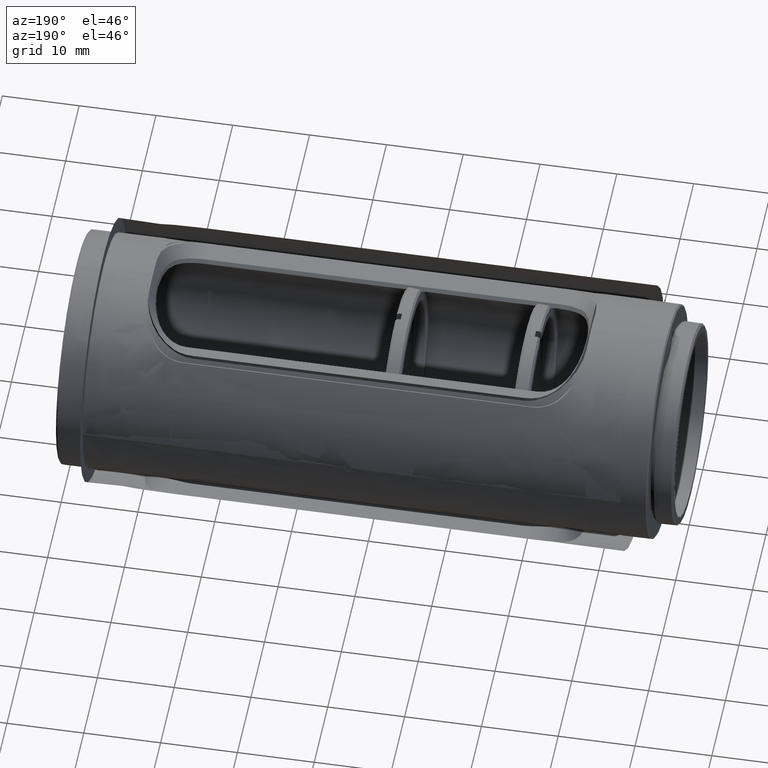
[diagram: clean part render]
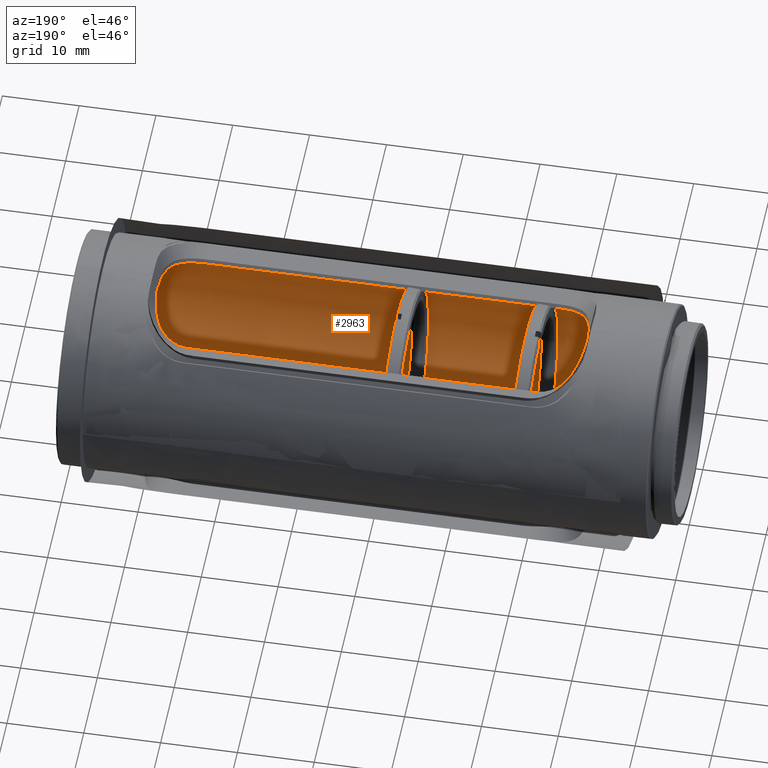
[diagram: same view with one face highlighted and labeled with its STEP entity id]
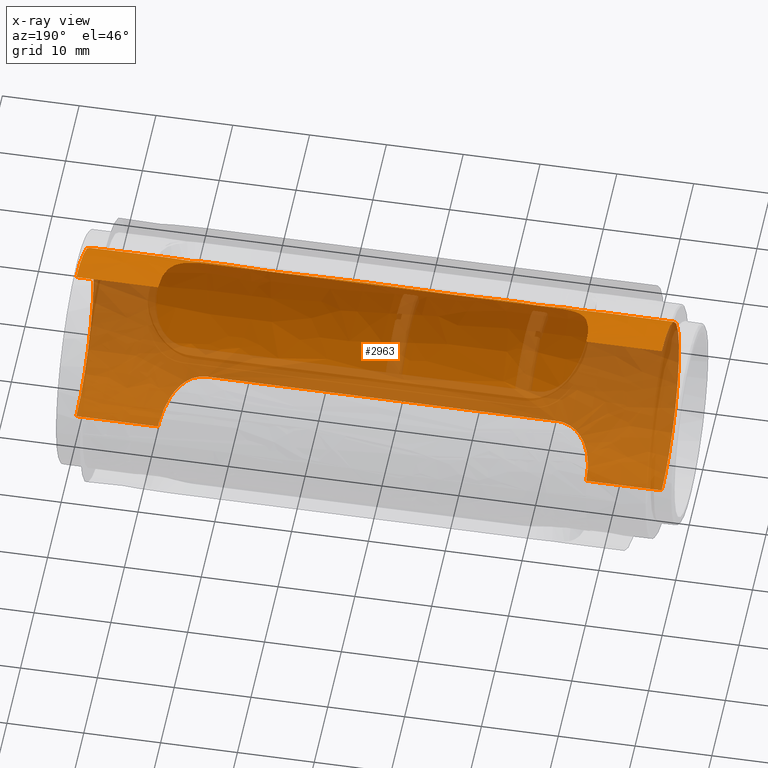
[diagram: x-ray of the same camera — body ghosted, the highlighted face saturated]
A machine part, auxiliary view. The second image highlights one B-rep face of the part: STEP entity #2963.
The next image is the same camera in x-ray: the body ghosted, the highlighted face saturated — about 50% of this face is hidden behind the body in this view.
In plain terms, the highlighted face is a freeform B-spline surface patch.
Its self-contained STEP definition (entity closure, byte-faithful):
#85 = CARTESIAN_POINT ( 'NONE',  ( -31.83391507261635311, -5.021551688762062149, -11.80313636215862161 ) ) ;
#150 = CARTESIAN_POINT ( 'NONE',  ( -31.02463960500773155, -2.430086151110083303, -12.59211128316691308 ) ) ;
#165 = CARTESIAN_POINT ( 'NONE',  ( -31.13609289038759442, -3.012851743446376851, 12.46424084413393985 ) ) ;
#184 = B_SPLINE_CURVE_WITH_KNOTS ( 'NONE', 1,
 ( #3322, #10538 ),
 .UNSPECIFIED., .F., .F.,
 ( 2, 2 ),
 ( 0.000000000000000000, 1.000000000000000000 ),
 .UNSPECIFIED. ) ;
#230 = CARTESIAN_POINT ( 'NONE',  ( -33.67509046073442391, -6.964707715348830597, 10.77163029358229451 ) ) ;
#278 = CARTESIAN_POINT ( 'NONE',  ( -31.35215171697834791, -3.839724992987747054, -12.23662784658705149 ) ) ;
#294 = CARTESIAN_POINT ( 'NONE',  ( -30.85868296422884782, -0.8824534959709755544, 12.79941383864430371 ) ) ;
#318 = CARTESIAN_POINT ( 'NONE',  ( -96.41715672482450827, 8.662958387056229999E-15, -12.82699999999999996 ) ) ;
#354 = CARTESIAN_POINT ( 'NONE',  ( -31.12932501518754691, -2.981154856613172921, 12.47179160694212641 ) ) ;
#355 = B_SPLINE_CURVE_WITH_KNOTS ( 'NONE', 3,
 ( #10045, #4017, #12104, #6097, #8031, #1832, #12041, #9235, #2956, #10177, #5087, #1089, #6894, #1901, #5972, #902, #7021, #9109, #7152, #8980, #4080, #6157, #6959, #13114, #8159, #10981, #4892, #5158, #7087, #7971, #1965, #966, #10240, #5026, #13045, #3891, #13174, #3021, #5899, #2897, #85, #4960, #11176, #12236, #4150, #8224, #6036, #9981, #833, #9045, #3085, #12305, #6221, #11558, #2283, #12372, #9426, #2410, #278, #2155, #11371, #150, #4276, #1404, #407, #7347, #10306, #5414, #1151, #3150, #11431, #6286, #12435, #6347, #7220, #1344, #10434 ),
 .UNSPECIFIED., .F., .F.,
 ( 4, 2, 2, 2, 2, 2, 2, 1, 1, 1, 2, 2, 2, 2, 2, 1, 1, 1, 2, 2, 2, 1, 1, 2, 1, 1, 1, 2, 2, 2, 2, 2, 1, 1, 1, 2, 2, 2, 2, 2, 1, 1, 1, 2, 2, 2, 4 ),
 ( 0.000000000000000000, 0.06250000000004780898, 0.09375000000007269185, 0.1250000000000975608, 0.1875000000001454392, 0.2187500000001692813, 0.2343750000001811884, 0.2421875000001871003, 0.2460937500001892930, 0.2480468750001895983, 0.2490234375001906253, 0.2500000000001916800, 0.3125000000002033373, 0.3437500000002092215, 0.3593750000002125522, 0.3671875000002136624, 0.3710937500002141620, 0.3730468750002144951, 0.3740234375002145506, 0.3750000000002146061, 0.4375000000002671752, 0.4687500000002928213, 0.4843750000003052558, 0.4921875000003120282, 0.4960937500003156919, 0.4980468750003178569, 0.4990234375003189671, 0.4995117187503194667, 0.5000000000003199663, 0.5625000000002590150, 0.5937500000002280398, 0.6093750000002126077, 0.6171875000002048361, 0.6210937500002011724, 0.6230468750001995071, 0.6240234375001986189, 0.6250000000001976197, 0.7500000000001326717, 0.8125000000001002531, 0.8437500000000840439, 0.8593750000000759393, 0.8671875000000718314, 0.8710937500000698330, 0.8730468750000687228, 0.8750000000000677236, 0.9375000000000338618, 1.000000000000000000 ),
 .UNSPECIFIED. ) ;
#385 = CARTESIAN_POINT ( 'NONE',  ( -96.41715672482449406, -12.74484754683963139, 1.676340673998597985 ) ) ;
#407 = CARTESIAN_POINT ( 'NONE',  ( -30.93830594265517320, -1.800717057692649670, -12.69742948957907025 ) ) ;
#421 = CARTESIAN_POINT ( 'NONE',  ( -31.11969227111644543, -2.935466598765251955, 12.48258095602603035 ) ) ;
#454 = ORIENTED_EDGE ( 'NONE', *, *, #12346, .F. ) ;
#505 = CARTESIAN_POINT ( 'NONE',  ( -20.21715672482449477, -9.665585972146873317, -8.474536035161049696 ) ) ;
#526 = CARTESIAN_POINT ( 'NONE',  ( -83.70651219680436839, -6.993315659455224598, -10.75312878497390479 ) ) ;
#563 = CARTESIAN_POINT ( 'NONE',  ( -34.15174608387732036, -7.196453982174339181, 10.61912465726988053 ) ) ;
#591 = CARTESIAN_POINT ( 'NONE',  ( -83.92702690498131801, -6.870814266003305804, -10.83203231801496713 ) ) ;
#633 = CARTESIAN_POINT ( 'NONE',  ( -82.45472443894882986, -7.434131612179786686, 10.45352664339045212 ) ) ;
#659 = CARTESIAN_POINT ( 'NONE',  ( -85.26812609151633637, -5.574434434775222158, -11.55152609702385824 ) ) ;
#666 = ORIENTED_EDGE ( 'NONE', *, *, #13020, .F. ) ;
#698 = CARTESIAN_POINT ( 'NONE',  ( -85.07775573143719328, -5.840774505187344978, 11.42011211690035388 ) ) ;
#725 = CARTESIAN_POINT ( 'NONE',  ( -82.02420487337901989, -7.515520375871570735, -10.39513148368356887 ) ) ;
#767 = CARTESIAN_POINT ( 'NONE',  ( -84.94208635901429716, -5.998408622664315182, 11.33677516938132079 ) ) ;
#795 = CARTESIAN_POINT ( 'NONE',  ( -85.25985264140983588, -5.586450359031572610, -11.54569876599899203 ) ) ;
#808 = B_SPLINE_CURVE_WITH_KNOTS ( 'NONE', 1,
 ( #9222, #11608 ),
 .UNSPECIFIED., .F., .F.,
 ( 2, 2 ),
 ( -1.000000000000000000, 0.000000000000000000 ),
 .UNSPECIFIED. ) ;
#833 = CARTESIAN_POINT ( 'NONE',  ( -31.60319027116440793, -4.533092100241322697, -11.99914989179185554 ) ) ;
#839 = CARTESIAN_POINT ( 'NONE',  ( -86.01721193399993126, -4.039729629602861749, 12.17262164106235645 ) ) ;
#902 = CARTESIAN_POINT ( 'NONE',  ( -33.44991981503902423, -6.831084636197667592, -10.85686771110610671 ) ) ;
#907 = CARTESIAN_POINT ( 'NONE',  ( -83.27841041003641465, -7.198872822648099579, 10.61845724748009445 ) ) ;
#961 = CARTESIAN_POINT ( 'NONE',  ( -35.85715672482449179, -7.515250814072949481, 10.39485133138400030 ) ) ;
#966 = CARTESIAN_POINT ( 'NONE',  ( -32.49605392723617570, -6.002844826583531912, -11.33442789125768968 ) ) ;
#970 = CARTESIAN_POINT ( 'NONE',  ( -86.40967383841837091, -2.430086185295253998, 12.59211127592869239 ) ) ;
#1034 = CARTESIAN_POINT ( 'NONE',  ( -86.51474660877944700, -1.624724645768457210, 12.72104662638383488 ) ) ;
#1089 = CARTESIAN_POINT ( 'NONE',  ( -33.63267649628827627, -6.941634379328908366, -10.78715305681645908 ) ) ;
#1108 = CARTESIAN_POINT ( 'NONE',  ( -20.21715672482449833, 8.776356490262909520E-15, 12.82699999999999996 ) ) ;
#1151 = CARTESIAN_POINT ( 'NONE',  ( -30.89595596015974621, -1.371737595200310134, -12.75119460701098006 ) ) ;
#1166 = CARTESIAN_POINT ( 'NONE',  ( -31.35833009339969379, -3.864221126349683733, 12.22988297531930613 ) ) ;
#1171 = FACE_OUTER_BOUND ( 'NONE', #5798, .T. ) ;
#1233 = CARTESIAN_POINT ( 'NONE',  ( -33.37198985241243321, -6.783229707606994729, 10.88697865707916002 ) ) ;
#1236 = CARTESIAN_POINT ( 'NONE',  ( -96.41715672482450827, -7.513882636747875488, 12.82700000000000884 ) ) ;
#1295 = CARTESIAN_POINT ( 'NONE',  ( -32.41483565753514284, -5.909507849572489313, 11.38425705102783780 ) ) ;
#1320 = CARTESIAN_POINT ( 'NONE',  ( -96.41715672482447985, -3.328489942270703938, -12.41622131955372765 ) ) ;
#1344 = CARTESIAN_POINT ( 'NONE',  ( -30.83846100374379517, -0.1125582409038061865, -12.82699999990119188 ) ) ;
#1359 = CARTESIAN_POINT ( 'NONE',  ( -33.72780125491342318, -6.993315660560331715, 10.75312878425553365 ) ) ;
#1383 = CARTESIAN_POINT ( 'NONE',  ( -96.41715672482447985, -12.82699671681121600, -0.8422661538812272752 ) ) ;
#1404 = CARTESIAN_POINT ( 'NONE',  ( -30.95171102775003291, -1.913013325707351164, -12.68073595888621696 ) ) ;
#1419 = CARTESIAN_POINT ( 'NONE',  ( -30.94843559756097662, -1.885940934376230560, 12.68461701379389517 ) ) ;
#1495 = CARTESIAN_POINT ( 'NONE',  ( -20.21715672482450188, -12.17290158708007830, -4.130590774566942791 ) ) ;
#1554 = CARTESIAN_POINT ( 'NONE',  ( -33.84304002427397506, -7.053305699895190628, 10.71405436139767531 ) ) ;
#1586 = CARTESIAN_POINT ( 'NONE',  ( -86.30813100353856271, -2.966329572046494167, -12.47530606156573185 ) ) ;
#1593 = B_SPLINE_CURVE_WITH_KNOTS ( 'NONE', 3,
 ( #5836, #3689, #6767, #7766, #633, #1630, #3895, #2902, #907, #1905, #1839, #11777, #5976, #3828, #4827, #10846, #10049, #8844, #7836, #12045, #5697, #6834, #11846, #9774, #4964, #11912, #4689, #8775, #1702, #9841, #13118, #5766, #767, #698, #2767, #12917, #8912, #9986, #3759, #6899, #10919, #1770, #9049, #9911, #7906, #11979, #7976, #6964, #2837, #7699, #2631, #10986, #839, #6699, #4897, #8985, #10775, #8035, #9113, #8100, #6040, #970, #11181, #9175, #2960, #1034, #4022, #5030, #7026, #7156, #13179, #12175, #11117, #4084, #12241, #2030, #8163 ),
 .UNSPECIFIED., .F., .F.,
 ( 4, 2, 2, 2, 2, 2, 2, 1, 1, 1, 2, 2, 2, 2, 2, 1, 1, 1, 2, 2, 2, 1, 1, 2, 1, 1, 1, 2, 2, 2, 2, 2, 1, 1, 1, 2, 2, 2, 2, 2, 1, 1, 1, 2, 2, 2, 4 ),
 ( 0.000000000000000000, 0.06250000000013110346, 0.09375000000019667601, 0.1250000000002622347, 0.1875000000003970990, 0.2187500000004627132, 0.2343750000004955480, 0.2421875000005120349, 0.2460937500005201950, 0.2480468750005241918, 0.2490234375005246081, 0.2500000000005250245, 0.3125000000006158962, 0.3437500000006614154, 0.3593750000006830092, 0.3671875000006928902, 0.3710937500006970535, 0.3730468750006992740, 0.3740234375007012169, 0.3750000000007031042, 0.4375000000007084888, 0.4687500000007103207, 0.4843750000007111534, 0.4921875000007116530, 0.4960937500007127077, 0.4980468750007124301, 0.4990234375007122636, 0.4995117187507122081, 0.5000000000007120970, 0.5625000000006394885, 0.5937500000006024070, 0.6093750000005839773, 0.6171875000005747625, 0.6210937500005700995, 0.6230468750005678791, 0.6240234375005663248, 0.6250000000005648815, 0.7500000000003754774, 0.8125000000002808864, 0.8437500000002335909, 0.8593750000002099432, 0.8671875000001979528, 0.8710937500001917355, 0.8730468750001887379, 0.8750000000001857403, 0.9375000000000929257, 1.000000000000000000 ),
 .UNSPECIFIED. ) ;
#1630 = CARTESIAN_POINT ( 'NONE',  ( -82.66517455332639486, -7.388961650875763176, 10.48577119867244534 ) ) ;
#1635 = B_SPLINE_CURVE_WITH_KNOTS ( 'NONE', 1,
 ( #4611, #5487 ),
 .UNSPECIFIED., .F., .F.,
 ( 2, 2 ),
 ( 0.000000000000000000, 1.000000000000000000 ),
 .UNSPECIFIED. ) ;
#1658 = CARTESIAN_POINT ( 'NONE',  ( -85.90658020884410462, -4.344188664279052148, -12.06796687150805347 ) ) ;
#1702 = CARTESIAN_POINT ( 'NONE',  ( -84.90284635322019824, -6.043437832866042747, 11.31286122422628893 ) ) ;
#1708 = CARTESIAN_POINT ( 'NONE',  ( -20.21715672482449833, -12.41623104242805198, 3.328441061161597769 ) ) ;
#1725 = CARTESIAN_POINT ( 'NONE',  ( -85.56200376852905265, -5.100514366666664579, -11.77069166247157384 ) ) ;
#1770 = CARTESIAN_POINT ( 'NONE',  ( -85.61077765736152401, -5.001684429324756209, 11.81160642608308464 ) ) ;
#1832 = CARTESIAN_POINT ( 'NONE',  ( -34.76913889742332486, -7.388961651135304898, -10.48577119848569517 ) ) ;
#1839 = CARTESIAN_POINT ( 'NONE',  ( -83.66421362677689899, -7.017569292274234094, 10.73836494621990845 ) ) ;
#1850 = CARTESIAN_POINT ( 'NONE',  ( -30.83846110759854753, -6.568785445841580477E-09, -12.82699999999999996 ) ) ;
#1901 = CARTESIAN_POINT ( 'NONE',  ( -33.52102191910861961, -6.875528559755485603, -10.82903820304060005 ) ) ;
#1905 = CARTESIAN_POINT ( 'NONE',  ( -83.56924489076642715, -7.065545366428583662, 10.70697644441383112 ) ) ;
#1965 = CARTESIAN_POINT ( 'NONE',  ( -32.50196373689838936, -6.009670876634127801, -11.33081131470324188 ) ) ;
#1979 = CARTESIAN_POINT ( 'NONE',  ( -30.83846110784554995, 6.015772086295059488E-15, 12.82699999999999996 ) ) ;
#2030 = CARTESIAN_POINT ( 'NONE',  ( -86.59585244598034137, -0.1125581923956438385, 12.82699999999999818 ) ) ;
#2086 = ORIENTED_EDGE ( 'NONE', *, *, #13086, .F. ) ;
#2155 = CARTESIAN_POINT ( 'NONE',  ( -31.20577067854328845, -3.368886921481897723, -12.38304803077492267 ) ) ;
#2236 = CARTESIAN_POINT ( 'NONE',  ( -32.52589739662347768, -6.044850197108199374, 11.31372672362538268 ) ) ;
#2261 = CARTESIAN_POINT ( 'NONE',  ( -96.41715672482449406, -3.328505165872246430, 12.41621159647482031 ) ) ;
#2264 = CARTESIAN_POINT ( 'NONE',  ( -86.50258074771684846, -1.743255349744063709, -12.70547646128644459 ) ) ;
#2283 = CARTESIAN_POINT ( 'NONE',  ( -31.37424925819053811, -3.909782407830088680, -12.21463102929337552 ) ) ;
#2299 = CARTESIAN_POINT ( 'NONE',  ( -32.17274291619665405, -5.583962691152641433, 11.54690664515132781 ) ) ;
#2327 = CARTESIAN_POINT ( 'NONE',  ( -86.44273333562959749, -2.219859376429525355, -12.63150831675781305 ) ) ;
#2344 = CARTESIAN_POINT ( 'NONE',  ( -30.83846110784554995, 6.015772086295059488E-15, 12.82699999999999996 ) ) ;
#2361 = CARTESIAN_POINT ( 'NONE',  ( -32.17250534193674127, -5.583615854177627291, 11.54707448340541021 ) ) ;
#2385 = CARTESIAN_POINT ( 'NONE',  ( -96.41715672482452248, -4.130529182909573827, 12.17292709950258356 ) ) ;
#2387 = VERTEX_POINT ( 'NONE', #5728 ) ;
#2388 = CARTESIAN_POINT ( 'NONE',  ( -86.59570092373380135, -0.2118370435849241395, -12.82666602185700278 ) ) ;
#2410 = CARTESIAN_POINT ( 'NONE',  ( -31.35433958467947235, -3.846743786648808783, -12.23444130611710357 ) ) ;
#2425 = CARTESIAN_POINT ( 'NONE',  ( -32.14661857068768569, -5.545876233850840720, 11.56534677659233523 ) ) ;
#2453 = CARTESIAN_POINT ( 'NONE',  ( -86.59585227362144622, -0.07418233162823399673, -12.82700000006515140 ) ) ;
#2485 = CARTESIAN_POINT ( 'NONE',  ( -30.91098185526987052, -1.536742771742126923, 12.73181581523007466 ) ) ;
#2509 = ORIENTED_EDGE ( 'NONE', *, *, #12519, .F. ) ;
#2550 = CARTESIAN_POINT ( 'NONE',  ( -86.59585234180329394, 7.120889955690749720E-16, 12.82699999999999996 ) ) ;
#2566 = CARTESIAN_POINT ( 'NONE',  ( -20.21715672482449477, -5.686769999200465442, 11.52830393999320080 ) ) ;
#2589 = CARTESIAN_POINT ( 'NONE',  ( -86.07598334035120047, -3.864221175934906771, -12.22988295958793969 ) ) ;
#2631 = CARTESIAN_POINT ( 'NONE',  ( -85.95251183981270060, -4.223471209009812988, 12.11067509230864658 ) ) ;
#2659 = CARTESIAN_POINT ( 'NONE',  ( -83.69505976787318957, -6.999416591143200250, -10.74917059022350863 ) ) ;
#2706 = CARTESIAN_POINT ( 'NONE',  ( -20.21715672482449477, -11.13316441209461871, -6.426037921608316772 ) ) ;
#2724 = CARTESIAN_POINT ( 'NONE',  ( -85.45399816333718945, -5.294154351309803275, -11.68519354172627267 ) ) ;
#2767 = CARTESIAN_POINT ( 'NONE',  ( -85.19981556038776205, -5.678293306814331309, 11.50204146135492600 ) ) ;
#2774 = CARTESIAN_POINT ( 'NONE',  ( -20.21715672482449122, -12.17289552104470118, 4.130588262024215140 ) ) ;
#2837 = CARTESIAN_POINT ( 'NONE',  ( -85.83112318265145291, -4.533092090366772631, 11.99914989553668754 ) ) ;
#2861 = CARTESIAN_POINT ( 'NONE',  ( -86.11618099821309613, -3.730735927604792224, -12.27061148359737786 ) ) ;
#2897 = CARTESIAN_POINT ( 'NONE',  ( -31.84288688233039011, -5.038524893442623664, -11.79585758674327600 ) ) ;
#2902 = CARTESIAN_POINT ( 'NONE',  ( -83.07792176340511503, -7.273273175597773310, 10.56725685294517803 ) ) ;
#2956 = CARTESIAN_POINT ( 'NONE',  ( -34.15590304129759147, -7.198872823303639201, -10.61845724702562954 ) ) ;
#2960 = CARTESIAN_POINT ( 'NONE',  ( -86.49600750134369775, -1.800717107810696715, 12.69742948253240300 ) ) ;
#2963 = ADVANCED_FACE ( 'NONE', ( #1171 ), #11280, .T. ) ;
#3021 = CARTESIAN_POINT ( 'NONE',  ( -31.89742716962008728, -5.139842820614079599, -11.75201399540797453 ) ) ;
#3042 = CARTESIAN_POINT ( 'NONE',  ( -96.41715672482450827, 5.630394138199489887E-09, -12.82699999999999996 ) ) ;
#3085 = CARTESIAN_POINT ( 'NONE',  ( -31.48180161311497116, -4.223471217912110554, -12.11067508919696856 ) ) ;
#3150 = CARTESIAN_POINT ( 'NONE',  ( -30.89396566790511756, -1.348021134404587151, -12.75375996367140452 ) ) ;
#3178 = CARTESIAN_POINT ( 'NONE',  ( -20.21715672482449833, 1.257130619265186031E-14, -12.82699999999999996 ) ) ;
#3231 = CARTESIAN_POINT ( 'NONE',  ( -31.51747541555520371, -4.317580024795148574, 12.07744843514927702 ) ) ;
#3254 = CARTESIAN_POINT ( 'NONE',  ( -96.41715672482450827, -1.676341955129499794, 12.74485398698966243 ) ) ;
#3293 = CARTESIAN_POINT ( 'NONE',  ( -33.72262054796220809, -6.990551103347364403, 10.75492183315726358 ) ) ;
#3299 = VERTEX_POINT ( 'NONE', #7495 ) ;
#3318 = CARTESIAN_POINT ( 'NONE',  ( -96.41715672482452248, -11.13320145037205577, -6.425982490404555492 ) ) ;
#3322 = CARTESIAN_POINT ( 'NONE',  ( -96.41715672482450827, 8.662958387056229999E-15, -12.82699999999999996 ) ) ;
#3354 = CARTESIAN_POINT ( 'NONE',  ( -32.28876844460737061, -5.746176510594429132, 11.46707705189687410 ) ) ;
#3371 = EDGE_CURVE ( 'NONE', #6704, #5997, #1593, .T. ) ;
#3414 = CARTESIAN_POINT ( 'NONE',  ( -31.12587725332399557, -2.964893578198501523, 12.47564723587542801 ) ) ;
#3444 = CARTESIAN_POINT ( 'NONE',  ( -86.52910884191948071, -1.475440515613894776, -12.73919573819010864 ) ) ;
#3477 = CARTESIAN_POINT ( 'NONE',  ( -32.20998922554711186, -5.637353266579431477, 11.52088656255221721 ) ) ;
#3505 = CARTESIAN_POINT ( 'NONE',  ( -96.41715672482449406, -10.19732544347297143, 7.826619915436658914 ) ) ;
#3629 = CARTESIAN_POINT ( 'NONE',  ( -20.21715672482449833, -6.426034273949182030, -11.13315895270540778 ) ) ;
#3648 = CARTESIAN_POINT ( 'NONE',  ( -85.97608044707824604, -4.158813857368576450, -12.13291483332382548 ) ) ;
#3689 = CARTESIAN_POINT ( 'NONE',  ( -81.79961630210708279, -7.515250475274901198, 10.39485157632757328 ) ) ;
#3695 = CARTESIAN_POINT ( 'NONE',  ( -20.21715672482449833, -12.82700328290533598, 0.8421994872046661973 ) ) ;
#3716 = CARTESIAN_POINT ( 'NONE',  ( -85.88960489326876768, -4.387670762401006286, -12.05235055470551409 ) ) ;
#3759 = CARTESIAN_POINT ( 'NONE',  ( -85.57338124137227453, -5.072397548659165700, 11.78127531064390432 ) ) ;
#3828 = CARTESIAN_POINT ( 'NONE',  ( -83.91329153269518315, -6.875528558445730631, 10.82903820387435090 ) ) ;
#3835 = CARTESIAN_POINT ( 'NONE',  ( -20.21715672482449833, -1.676390835447695737, 12.74484426391074443 ) ) ;
#3854 = CARTESIAN_POINT ( 'NONE',  ( -85.93959130029699622, -4.257450281059067976, -12.09863556933980355 ) ) ;
#3891 = CARTESIAN_POINT ( 'NONE',  ( -32.06602851415904354, -5.424512463279453911, -11.62305516000355965 ) ) ;
#3895 = CARTESIAN_POINT ( 'NONE',  ( -82.76708942758851606, -7.363343762756183075, 10.50395779967681165 ) ) ;
#3986 = CARTESIAN_POINT ( 'NONE',  ( -81.57715672482450486, -7.515250814072959251, -10.39485133138400030 ) ) ;
#4017 = CARTESIAN_POINT ( 'NONE',  ( -35.63469714777770037, -7.515250475274909192, -10.39485157632758039 ) ) ;
#4022 = CARTESIAN_POINT ( 'NONE',  ( -86.52377439919582969, -1.534841355811903840, 12.73249866907807792 ) ) ;
#4080 = CARTESIAN_POINT ( 'NONE',  ( -33.31377503871725310, -6.742360451967737589, -10.91189848689361241 ) ) ;
#4084 = CARTESIAN_POINT ( 'NONE',  ( -86.58170282546353747, -0.7184284846804169788, 12.80786096163503629 ) ) ;
#4092 = CARTESIAN_POINT ( 'NONE',  ( -30.83846110784554995, 6.015772086295059488E-15, 12.82699999999999996 ) ) ;
#4100 = CARTESIAN_POINT ( 'NONE',  ( -96.41715672482450827, -12.82699999835089777, -7.513882639563065347 ) ) ;
#4150 = CARTESIAN_POINT ( 'NONE',  ( -31.81468546283994314, -4.984620637126843334, -11.81885484559509969 ) ) ;
#4169 = CARTESIAN_POINT ( 'NONE',  ( -96.41715672482450827, -12.82700000164908971, 7.513882633932672306 ) ) ;
#4233 = CARTESIAN_POINT ( 'NONE',  ( -31.53610728133475405, -4.365790975607884761, 12.06024316493783211 ) ) ;
#4255 = CARTESIAN_POINT ( 'NONE',  ( -96.41715672482453670, -12.82700328318875727, 0.8422661538812282744 ) ) ;
#4276 = CARTESIAN_POINT ( 'NONE',  ( -30.99386384440431286, -2.234938538174939815, -12.62896028378271041 ) ) ;
#4293 = CARTESIAN_POINT ( 'NONE',  ( -31.02444070363485196, -2.431100830443511551, 12.59205243524432660 ) ) ;
#4357 = CARTESIAN_POINT ( 'NONE',  ( -30.90623873777866137, -1.486610233643183676, 12.73787265861375495 ) ) ;
#4382 = CARTESIAN_POINT ( 'NONE',  ( -96.41715672482450827, -8.474488894835515040, 9.665633112835697816 ) ) ;
#4386 = CARTESIAN_POINT ( 'NONE',  ( -86.58559672091399761, -0.6153786082855859929, -12.81295260065859409 ) ) ;
#4418 = CARTESIAN_POINT ( 'NONE',  ( -30.93173269338840825, -1.743255268290923032, 12.70547647202472064 ) ) ;
#4443 = CARTESIAN_POINT ( 'NONE',  ( -96.41715672482452248, -9.665633112890464673, -8.474488894798952288 ) ) ;
#4477 = CARTESIAN_POINT ( 'NONE',  ( -31.54470855816629538, -4.387670766907720399, 12.05235055305927006 ) ) ;
#4510 = CARTESIAN_POINT ( 'NONE',  ( -86.53825621509815846, -1.375425719245726652, -12.75091038711395264 ) ) ;
#4543 = CARTESIAN_POINT ( 'NONE',  ( -96.41715672482450827, 3.677279995080159776E-15, 12.82699999999999996 ) ) ;
#4558 = CARTESIAN_POINT ( 'NONE',  ( -20.21715672482449477, -7.826564483935656291, -10.19736248130409884 ) ) ;
#4578 = CARTESIAN_POINT ( 'NONE',  ( -83.52068806509619492, -7.087254935534361699, -10.69165393555821986 ) ) ;
#4611 = CARTESIAN_POINT ( 'NONE',  ( -81.57715672482450486, -7.515250814072959251, -10.39485133138400030 ) ) ;
#4627 = CARTESIAN_POINT ( 'NONE',  ( -20.21715672482449833, -12.74483454103640412, 1.676406059840156448 ) ) ;
#4647 = CARTESIAN_POINT ( 'NONE',  ( -83.75922299084402312, -6.964707714281705542, -10.77163029427049779 ) ) ;
#4689 = CARTESIAN_POINT ( 'NONE',  ( -84.82668923997326260, -6.127498424307424862, 11.26759360515755226 ) ) ;
#4715 = CARTESIAN_POINT ( 'NONE',  ( -85.24054236562632525, -5.614306192082020530, -11.53215531526710436 ) ) ;
#4782 = CARTESIAN_POINT ( 'NONE',  ( -86.30725234922627465, -2.970478752778958675, -12.47432309696313801 ) ) ;
#4822 = CARTESIAN_POINT ( 'NONE',  ( -33.73925368383616075, -6.999416592235499834, 10.74917058951223581 ) ) ;
#4827 = CARTESIAN_POINT ( 'NONE',  ( -83.94631634237632056, -6.855225447098170832, 10.84179917902319268 ) ) ;
#4854 = CARTESIAN_POINT ( 'NONE',  ( -83.74035044448025644, -6.975083082360397313, -10.76493472123757478 ) ) ;
#4892 = CARTESIAN_POINT ( 'NONE',  ( -32.60762421111643050, -6.127498425851900521, -11.26759360431549162 ) ) ;
#4897 = CARTESIAN_POINT ( 'NONE',  ( -86.06006419370407912, -3.909782400848199835, 12.21463103152996332 ) ) ;
#4960 = CARTESIAN_POINT ( 'NONE',  ( -31.82353579471187999, -5.001684433986065770, -11.81160642411006201 ) ) ;
#4964 = CARTESIAN_POINT ( 'NONE',  ( -84.71128267074151097, -6.247522595849246407, 11.20162184534717831 ) ) ;
#5026 = CARTESIAN_POINT ( 'NONE',  ( -32.35655772077955561, -5.840774508444150470, -11.42011211524031289 ) ) ;
#5030 = CARTESIAN_POINT ( 'NONE',  ( -86.53361886723399721, -1.426659801099302127, 12.74510076383927171 ) ) ;
#5040 = CARTESIAN_POINT ( 'NONE',  ( -30.83861252765521144, -0.2118371929416647259, 12.82666601956685781 ) ) ;
#5045 = ORIENTED_EDGE ( 'NONE', *, *, #10337, .F. ) ;
#5067 = ORIENTED_EDGE ( 'NONE', *, *, #11136, .F. ) ;
#5087 = CARTESIAN_POINT ( 'NONE',  ( -33.77009982487373208, -7.017569293307956535, -10.73836494553809651 ) ) ;
#5110 = CARTESIAN_POINT ( 'NONE',  ( -20.21715672482449833, -12.82699999999999996, -2.815198917760279973E-09 ) ) ;
#5158 = CARTESIAN_POINT ( 'NONE',  ( -32.57261763063468152, -6.089588380982705829, -11.28814757304891181 ) ) ;
#5239 = CARTESIAN_POINT ( 'NONE',  ( -31.45823299622747271, -4.158813839950000535, 12.13291483930585990 ) ) ;
#5301 = CARTESIAN_POINT ( 'NONE',  ( -32.17843902086455188, -5.592208903710495171, 11.54290248559575183 ) ) ;
#5324 = CARTESIAN_POINT ( 'NONE',  ( -96.41715672482450827, -9.665628469724154570, 8.474484251723994888 ) ) ;
#5328 = CARTESIAN_POINT ( 'NONE',  ( -86.40987271820395677, -2.431100995694925437, -12.59205240238151902 ) ) ;
#5351 = CARTESIAN_POINT ( 'NONE',  ( -20.21715672482449833, 9.320351278795549662E-15, 12.82699999999999996 ) ) ;
#5364 = CARTESIAN_POINT ( 'NONE',  ( -31.98031528598855289, -5.294154351056771013, 11.68519354188588188 ) ) ;
#5389 = CARTESIAN_POINT ( 'NONE',  ( -96.41715672482450827, -5.686831590984438023, 11.52827842754196475 ) ) ;
#5392 = CARTESIAN_POINT ( 'NONE',  ( -86.31462117714686144, -2.935466605362123005, -12.48258095446222171 ) ) ;
#5414 = CARTESIAN_POINT ( 'NONE',  ( -30.90069458171194938, -1.426659792980314423, -12.74510076473928954 ) ) ;
#5429 = CARTESIAN_POINT ( 'NONE',  ( -31.12706110110044122, -2.970478755951403205, 12.47432309619041746 ) ) ;
#5487 = CARTESIAN_POINT ( 'NONE',  ( -35.85715672482449179, -7.515250814072959251, -10.39485133138400030 ) ) ;
#5490 = CARTESIAN_POINT ( 'NONE',  ( -31.68969166875566756, -4.735774773942678983, 11.92206763248758783 ) ) ;
#5589 = CARTESIAN_POINT ( 'NONE',  ( -84.90841605332914810, -6.044850196758440042, -11.31372672379187172 ) ) ;
#5636 = CARTESIAN_POINT ( 'NONE',  ( -20.21715672482449833, -12.82699671709463907, -0.8421994872046647540 ) ) ;
#5655 = CARTESIAN_POINT ( 'NONE',  ( -85.14554500629981248, -5.746176508914516035, -11.46707705272526567 ) ) ;
#5697 = CARTESIAN_POINT ( 'NONE',  ( -84.12053841068771476, -6.742360452043794972, 10.91189848684229702 ) ) ;
#5723 = CARTESIAN_POINT ( 'NONE',  ( -86.28995313764121988, -3.050817850078787252, -12.45506839002811894 ) ) ;
#5728 = CARTESIAN_POINT ( 'NONE',  ( -35.85715672482449179, -7.515250814072959251, -10.39485133138400030 ) ) ;
#5766 = CARTESIAN_POINT ( 'NONE',  ( -84.93825952492198894, -6.002844823677749631, 11.33442789279318674 ) ) ;
#5772 = CARTESIAN_POINT ( 'NONE',  ( -20.21715672482450188, -11.52831000599982403, 5.686772511869802926 ) ) ;
#5790 = CARTESIAN_POINT ( 'NONE',  ( -82.45601690350359547, -7.453970946066867498, -10.44063196166366936 ) ) ;
#5798 = EDGE_LOOP ( 'NONE', ( #5067, #454, #8103, #2086, #7621, #12920, #5045, #666, #8527, #8092, #2509, #8378 ) ) ;
#5836 = CARTESIAN_POINT ( 'NONE',  ( -81.57715672482450486, -7.515250814072939711, 10.39485133138400030 ) ) ;
#5863 = CARTESIAN_POINT ( 'NONE',  ( -85.28769488107482744, -5.545876230716518585, -11.56534677809306366 ) ) ;
#5899 = CARTESIAN_POINT ( 'NONE',  ( -31.86093221071861237, -5.072397553204757159, -11.78127530869015693 ) ) ;
#5935 = CARTESIAN_POINT ( 'NONE',  ( -81.57715672482450486, -7.515250814072939711, 10.39485133138400030 ) ) ;
#5942 = EDGE_CURVE ( 'NONE', #3299, #6002, #7592, .T. ) ;
#5972 = CARTESIAN_POINT ( 'NONE',  ( -33.48799710944672370, -6.855225448447306746, -10.84179917816853944 ) ) ;
#5976 = CARTESIAN_POINT ( 'NONE',  ( -83.84671745781571417, -6.915610988596453623, 10.80373342514676160 ) ) ;
#5997 = VERTEX_POINT ( 'NONE', #6003 ) ;
#6002 = VERTEX_POINT ( 'NONE', #3986 ) ;
#6003 = CARTESIAN_POINT ( 'NONE',  ( -86.59585234180329394, 7.120889955690749720E-16, 12.82699999999999996 ) ) ;
#6036 = CARTESIAN_POINT ( 'NONE',  ( -31.78778411740183785, -4.932522370844365511, -11.84093577500857464 ) ) ;
#6040 = CARTESIAN_POINT ( 'NONE',  ( -86.31652132510544106, -2.952899273917252820, 12.48368465818228579 ) ) ;
#6051 = CARTESIAN_POINT ( 'NONE',  ( -30.83846117607714632, -0.07418243118536489711, 12.82699999999999818 ) ) ;
#6097 = CARTESIAN_POINT ( 'NONE',  ( -35.08646910141177955, -7.453204208637069783, -10.43980502528367538 ) ) ;
#6157 = CARTESIAN_POINT ( 'NONE',  ( -33.18038183810813280, -6.650218288651331022, -10.96878482460904003 ) ) ;
#6221 = CARTESIAN_POINT ( 'NONE',  ( -31.41710151832433695, -4.039729637465077516, -12.17262163844874934 ) ) ;
#6286 = CARTESIAN_POINT ( 'NONE',  ( -30.89217218435294043, -1.326414086164688033, -12.75607369778497890 ) ) ;
#6302 = CARTESIAN_POINT ( 'NONE',  ( -30.99158008947903298, -2.219859203972644135, 12.63150834656070920 ) ) ;
#6328 = CARTESIAN_POINT ( 'NONE',  ( -86.48587783801087880, -1.885941052218325753, -12.68461699632791095 ) ) ;
#6347 = CARTESIAN_POINT ( 'NONE',  ( -30.85261062704063661, -0.7184285508408416732, -12.80786095791814105 ) ) ;
#6362 = CARTESIAN_POINT ( 'NONE',  ( -31.12215948466413096, -2.947262602104681495, 12.47981164617569405 ) ) ;
#6390 = CARTESIAN_POINT ( 'NONE',  ( -96.41715672482449406, -6.425978842374723499, -11.13319599058563547 ) ) ;
#6393 = CARTESIAN_POINT ( 'NONE',  ( -86.33672263358039345, -2.828923642182483711, -12.50743915697710484 ) ) ;
#6426 = CARTESIAN_POINT ( 'NONE',  ( -33.69396300715646930, -6.975083083446315335, 10.76493472053524059 ) ) ;
#6453 = CARTESIAN_POINT ( 'NONE',  ( -96.41715672482452248, -8.474484251669203161, -9.665628469760749297 ) ) ;
#6456 = CARTESIAN_POINT ( 'NONE',  ( -86.52333159395489304, -1.536742776210525241, -12.73181581468972468 ) ) ;
#6490 = CARTESIAN_POINT ( 'NONE',  ( -32.17446081071431507, -5.586450362622797705, 11.54569876426523756 ) ) ;
#6517 = CARTESIAN_POINT ( 'NONE',  ( -96.41715672482449406, -0.8422496485186351523, 12.82699999999999285 ) ) ;
#6519 = CARTESIAN_POINT ( 'NONE',  ( -86.52807471311774634, -1.486610220188749443, -12.73787266019074949 ) ) ;
#6555 = CARTESIAN_POINT ( 'NONE',  ( -31.14436030465481764, -3.050817816476157240, 12.45506839813883460 ) ) ;
#6569 = CARTESIAN_POINT ( 'NONE',  ( -20.21715672482449477, -5.686772511748428016, -11.52831000606668077 ) ) ;
#6638 = CARTESIAN_POINT ( 'NONE',  ( -20.21715672482449833, -9.665581329398634125, 8.474531392427026688 ) ) ;
#6657 = CARTESIAN_POINT ( 'NONE',  ( -85.26180811022065598, -5.583615850533143465, -11.54707448516414914 ) ) ;
#6699 = CARTESIAN_POINT ( 'NONE',  ( -86.03690925461383188, -3.981273896112133670, 12.19178759607210871 ) ) ;
#6704 = VERTEX_POINT ( 'NONE', #5935 ) ;
#6705 = CARTESIAN_POINT ( 'NONE',  ( -20.21715672482449833, -1.676406059950220406, -12.74483454100740865 ) ) ;
#6725 = CARTESIAN_POINT ( 'NONE',  ( -85.26594526392257478, -5.577609359189536598, -11.54998794734038370 ) ) ;
#6767 = CARTESIAN_POINT ( 'NONE',  ( -82.02192881618421438, -7.499461654525636511, 10.40640792955606386 ) ) ;
#6793 = CARTESIAN_POINT ( 'NONE',  ( -83.28256736751201572, -7.196453981494216556, -10.61912465774291725 ) ) ;
#6834 = CARTESIAN_POINT ( 'NONE',  ( -84.25393161032353362, -6.650218289585438924, 10.96878482405636923 ) ) ;
#6894 = CARTESIAN_POINT ( 'NONE',  ( -33.58759599394866768, -6.915610989828422817, -10.80373342435473383 ) ) ;
#6899 = CARTESIAN_POINT ( 'NONE',  ( -85.59142656975213015, -5.038524888841686256, 11.79585758870634393 ) ) ;
#6924 = CARTESIAN_POINT ( 'NONE',  ( -86.00270220774439167, -4.082820381297615597, -12.15846351297217787 ) ) ;
#6959 = CARTESIAN_POINT ( 'NONE',  ( -32.94299528583565007, -6.453581174836489076, -11.08451331762996972 ) ) ;
#6964 = CARTESIAN_POINT ( 'NONE',  ( -85.70699306631750858, -4.815939610785725300, 11.89029873158893658 ) ) ;
#7021 = CARTESIAN_POINT ( 'NONE',  ( -33.43099317524024627, -6.818901326382992956, -10.86444599888881690 ) ) ;
#7026 = CARTESIAN_POINT ( 'NONE',  ( -86.53835748953669338, -1.371737594679744987, 12.75119460706662622 ) ) ;
#7087 = CARTESIAN_POINT ( 'NONE',  ( -32.53146709858696539, -6.043437835304455774, -11.31286122292506313 ) ) ;
#7152 = CARTESIAN_POINT ( 'NONE',  ( -33.41751928922964510, -6.810153382805599342, -10.86987663105383106 ) ) ;
#7156 = CARTESIAN_POINT ( 'NONE',  ( -86.54034778211118351, -1.348021129988522304, 12.75375996413579216 ) ) ;
#7189 = B_SPLINE_CURVE_WITH_KNOTS ( 'NONE', 3,
 ( #9328, #9643, #6705, #11852, #8711, #6569, #3629, #4558, #8782, #505, #9780, #2706, #8642, #1495, #10854, #12991, #5636, #3695, #4627, #1708, #2774, #5772, #12790, #7774, #6638, #11718, #12722, #11919, #2566, #8852, #7706, #3835, #11783, #8920 ),
 .UNSPECIFIED., .F., .F.,
 ( 4, 2, 2, 2, 2, 2, 2, 2, 2, 2, 2, 2, 2, 2, 2, 2, 4 ),
 ( 0.000000000000000000, 0.06250000000000008327, 0.1250000000000001388, 0.1875000000000001943, 0.2500000000000001665, 0.3125000000000001665, 0.3750000000000002220, 0.4375000000000002220, 0.5000000000000002220, 0.5625000000000003331, 0.6250000000000002220, 0.6875000000000002220, 0.7500000000000002220, 0.8125000000000002220, 0.8750000000000001110, 0.9375000000000001110, 1.000000000000000000 ),
 .UNSPECIFIED. ) ;
#7220 = CARTESIAN_POINT ( 'NONE',  ( -30.83935860201820489, -0.2790403936071909063, -12.82567212576724458 ) ) ;
#7239 = CARTESIAN_POINT ( 'NONE',  ( -96.41715672482450827, -7.513882631117481559, -12.82700000329819900 ) ) ;
#7301 = CARTESIAN_POINT ( 'NONE',  ( -30.90834339723420143, -1.509063245011154075, 12.73518269920953294 ) ) ;
#7324 = EDGE_CURVE ( 'NONE', #7853, #12909, #8276, .T. ) ;
#7330 = CARTESIAN_POINT ( 'NONE',  ( -86.52597005316891909, -1.509063237022076231, -12.73518270016308840 ) ) ;
#7347 = CARTESIAN_POINT ( 'NONE',  ( -30.91956683743944367, -1.624724611970244759, -12.72104663070520303 ) ) ;
#7367 = CARTESIAN_POINT ( 'NONE',  ( -31.12618244738910178, -2.966329578069815565, 12.47530606012283805 ) ) ;
#7372 = CARTESIAN_POINT ( 'NONE',  ( -20.21715672482450898, -12.82699999835089777, -7.513882639563065347 ) ) ;
#7393 = CARTESIAN_POINT ( 'NONE',  ( -96.41715672482449406, -10.19731998363741354, -7.826616267480319244 ) ) ;
#7427 = CARTESIAN_POINT ( 'NONE',  ( -31.07868212716066836, -2.731523674321768347, 12.52906996211735269 ) ) ;
#7452 = CARTESIAN_POINT ( 'NONE',  ( -96.41715672482449406, -7.826616267275954719, 10.19731998382355798 ) ) ;
#7455 = CARTESIAN_POINT ( 'NONE',  ( -86.30843619803907529, -2.964893570100824771, -12.47564723780539353 ) ) ;
#7490 = CARTESIAN_POINT ( 'NONE',  ( -31.49472214745617649, -4.257450275985118715, 12.09863557110056220 ) ) ;
#7495 = CARTESIAN_POINT ( 'NONE',  ( -86.59585234205040649, 6.568789048486969744E-09, -12.82699999999999996 ) ) ;
#7556 = CARTESIAN_POINT ( 'NONE',  ( -31.87230968022911881, -5.100514364996456607, 11.77069166317387605 ) ) ;
#7592 = B_SPLINE_CURVE_WITH_KNOTS ( 'NONE', 3,
 ( #11540, #2453, #2388, #4386, #8333, #8594, #4510, #3444, #6519, #7330, #10476, #6456, #11413, #2264, #6328, #2327, #5328, #12480, #6393, #5392, #9473, #7455, #1586, #4782, #12004, #9867, #5723, #12808, #7932, #2861, #2589, #6924, #3648, #3854, #8731, #12878, #10734, #8941, #1658, #9943, #3716, #7726, #8662, #1725, #2724, #9732, #5863, #659, #6725, #7793, #6657, #795, #11012, #4715, #9799, #11804, #5655, #11937, #5589, #7657, #7861, #8801, #591, #4647, #4854, #9666, #526, #2659, #10801, #11870, #4578, #6793, #10875, #5790, #725, #8871 ),
 .UNSPECIFIED., .F., .F.,
 ( 4, 2, 2, 2, 2, 2, 1, 1, 2, 2, 2, 2, 2, 1, 1, 2, 2, 2, 2, 1, 2, 2, 1, 2, 2, 2, 2, 2, 2, 1, 1, 2, 2, 2, 2, 2, 2, 2, 1, 1, 2, 2, 4 ),
 ( 0.000000000000000000, 0.06249999999991534549, 0.1249999999998306771, 0.1406249999998094302, 0.1425781249998067657, 0.1445312499998041289, 0.1484374999997987166, 0.1562499999997879752, 0.1874999999997438993, 0.2499999999996556643, 0.2812499999996118660, 0.2851562499996062594, 0.2871093749996034838, 0.2890624999996006528, 0.2968749999995932143, 0.3124999999995786704, 0.3749999999995230482, 0.4062499999994956257, 0.4218749999994823585, 0.4257812499994793054, 0.4277343749994778066, 0.4287109374994774735, 0.4296874999994771960, 0.4374999999994635957, 0.4999999999993578470, 0.5624999999992520427, 0.5703124999992378319, 0.5712890624992364996, 0.5722656249992351674, 0.5742187499992379429, 0.5781249999992437161, 0.5937499999992741362, 0.6249999999993310906, 0.6874999999994415578, 0.7499999999995521360, 0.7812499999996084243, 0.7851562499996158628, 0.7871093749996196376, 0.7890624999996234124, 0.7968749999996349587, 0.8124999999996614930, 0.8749999999997744027, 1.000000000000000000 ),
 .UNSPECIFIED. ) ;
#7621 = ORIENTED_EDGE ( 'NONE', *, *, #5942, .F. ) ;
#7657 = CARTESIAN_POINT ( 'NONE',  ( -84.61130162795794263, -6.350889500651148545, -11.14506141321977317 ) ) ;
#7658 = CARTESIAN_POINT ( 'NONE',  ( -30.83846110759854753, -6.568785445841580477E-09, -12.82699999999999996 ) ) ;
#7699 = CARTESIAN_POINT ( 'NONE',  ( -85.87787726239685071, -4.420714508498480022, 12.04114359179454219 ) ) ;
#7706 = CARTESIAN_POINT ( 'NONE',  ( -20.21715672482449833, -3.328456285554062699, 12.41622131955373121 ) ) ;
#7717 = VERTEX_POINT ( 'NONE', #8421 ) ;
#7726 = CARTESIAN_POINT ( 'NONE',  ( -85.81911028808895026, -4.564644390901022142, -11.98798757006579052 ) ) ;
#7766 = CARTESIAN_POINT ( 'NONE',  ( -82.34784434903357919, -7.453204208508093842, 10.43980502537763755 ) ) ;
#7774 = CARTESIAN_POINT ( 'NONE',  ( -20.21715672482449477, -10.19736248123247080, 7.826564484021523604 ) ) ;
#7793 = CARTESIAN_POINT ( 'NONE',  ( -85.26157053599921198, -5.583962687452951990, -11.54690664693695190 ) ) ;
#7836 = CARTESIAN_POINT ( 'NONE',  ( -84.01679416263310429, -6.810153381369146608, 10.86987663195389509 ) ) ;
#7853 = VERTEX_POINT ( 'NONE', #5351 ) ;
#7861 = CARTESIAN_POINT ( 'NONE',  ( -84.42565497568062938, -6.521784818464028355, -11.04662203662997655 ) ) ;
#7906 = CARTESIAN_POINT ( 'NONE',  ( -85.61962798922925799, -4.984620632437490428, 11.81885484757267335 ) ) ;
#7932 = CARTESIAN_POINT ( 'NONE',  ( -86.21655827684762130, -3.374952446924968985, -12.37423614860544596 ) ) ;
#7971 = CARTESIAN_POINT ( 'NONE',  ( -32.51082414773001261, -6.019874704852570702, -11.32539927122881274 ) ) ;
#7976 = CARTESIAN_POINT ( 'NONE',  ( -85.64652933614480901, -4.932522363182886060, 11.84093577822330268 ) ) ;
#8031 = CARTESIAN_POINT ( 'NONE',  ( -34.97958901160029654, -7.434131612347631091, -10.45352664326848213 ) ) ;
#8035 = CARTESIAN_POINT ( 'NONE',  ( -86.07997386700934328, -3.846743780133226931, 12.23444130816645092 ) ) ;
#8092 = ORIENTED_EDGE ( 'NONE', *, *, #8457, .F. ) ;
#8100 = CARTESIAN_POINT ( 'NONE',  ( -86.22854276188897416, -3.368886949822634147, 12.38304802168814689 ) ) ;
#8103 = ORIENTED_EDGE ( 'NONE', *, *, #12675, .F. ) ;
#8114 = CARTESIAN_POINT ( 'NONE',  ( -96.41715672482450827, -5.556121732985879281E-16, 12.82699999999999996 ) ) ;
#8159 = CARTESIAN_POINT ( 'NONE',  ( -32.72303077937053928, -6.247522596298939135, -11.20162184508911984 ) ) ;
#8163 = CARTESIAN_POINT ( 'NONE',  ( -86.59585234180329394, 7.120889955690749720E-16, 12.82699999999999996 ) ) ;
#8224 = CARTESIAN_POINT ( 'NONE',  ( -31.81341330584782412, -4.982158250137287858, -11.81989876807841533 ) ) ;
#8276 = B_SPLINE_CURVE_WITH_KNOTS ( 'NONE', 1,
 ( #11495, #2344 ),
 .UNSPECIFIED., .F., .F.,
 ( 2, 2 ),
 ( 0.000000000000000000, 1.000000000000000000 ),
 .UNSPECIFIED. ) ;
#8302 = B_SPLINE_CURVE_WITH_KNOTS ( 'NONE', 3,
 ( #11410, #6517, #3254, #2261, #2385, #5389, #10593, #7452, #4382, #5324, #3505, #11474, #8591, #11537, #9405, #385, #4255, #1383, #12540, #9529, #8394, #12477, #3318, #7393, #4443, #6453, #9595, #6390, #10473, #8460, #1320, #9470, #8525, #318 ),
 .UNSPECIFIED., .F., .F.,
 ( 4, 2, 2, 2, 2, 2, 2, 2, 2, 2, 2, 2, 2, 2, 2, 2, 4 ),
 ( 0.000000000000000000, 0.06249999999999993061, 0.1249999999999998890, 0.1874999999999998335, 0.2499999999999998335, 0.3124999999999998890, 0.3749999999999998890, 0.4374999999999999445, 0.4999999999999998890, 0.5624999999999997780, 0.6249999999999997780, 0.6874999999999996669, 0.7499999999999995559, 0.8124999999999996669, 0.8749999999999997780, 0.9375000000000000000, 1.000000000000000000 ),
 .UNSPECIFIED. ) ;
#8305 = CARTESIAN_POINT ( 'NONE',  ( -31.61520316186924262, -4.564644391385785482, 11.98798756981334890 ) ) ;
#8310 = CARTESIAN_POINT ( 'NONE',  ( -96.41715672482450827, -12.82699999999999996, -2.815198917760279973E-09 ) ) ;
#8333 = CARTESIAN_POINT ( 'NONE',  ( -86.57563049437897007, -0.8824533532847836925, -12.79941385019724365 ) ) ;
#8371 = CARTESIAN_POINT ( 'NONE',  ( -30.88905978379215611, -1.290170173543610410, 12.75995190369839172 ) ) ;
#8378 = ORIENTED_EDGE ( 'NONE', *, *, #7324, .F. ) ;
#8394 = CARTESIAN_POINT ( 'NONE',  ( -96.41715672482452248, -12.17292709954628549, -4.130529182769921093 ) ) ;
#8413 = VERTEX_POINT ( 'NONE', #10423 ) ;
#8421 = CARTESIAN_POINT ( 'NONE',  ( -96.41715672482450827, 3.677279995080159776E-15, 12.82699999999999996 ) ) ;
#8432 = CARTESIAN_POINT ( 'NONE',  ( -31.52773324298378910, -4.344188669889494037, 12.06796686948649011 ) ) ;
#8457 = EDGE_CURVE ( 'NONE', #9806, #6704, #808, .T. ) ;
#8460 = CARTESIAN_POINT ( 'NONE',  ( -96.41715672482445143, -4.130526669930465467, -12.17292103301870654 ) ) ;
#8498 = CARTESIAN_POINT ( 'NONE',  ( -31.09759080428750622, -2.828923584972204530, 12.50743917033035402 ) ) ;
#8525 = CARTESIAN_POINT ( 'NONE',  ( -96.41715672482449406, -0.8422159918973701753, -12.82699999999999996 ) ) ;
#8527 = ORIENTED_EDGE ( 'NONE', *, *, #3371, .F. ) ;
#8561 = CARTESIAN_POINT ( 'NONE',  ( -32.19377108619501371, -5.614306195188788706, 11.53215531376087810 ) ) ;
#8591 = CARTESIAN_POINT ( 'NONE',  ( -96.41715672482452248, -11.52828449404381139, 5.686834103875011870 ) ) ;
#8594 = CARTESIAN_POINT ( 'NONE',  ( -86.54525367063850183, -1.290170114402092061, -12.75995190978895089 ) ) ;
#8642 = CARTESIAN_POINT ( 'NONE',  ( -20.21715672482449477, -11.52830393996444691, -5.686769999327074387 ) ) ;
#8662 = CARTESIAN_POINT ( 'NONE',  ( -85.74462178031102155, -4.735774775241920587, -11.92206763199421893 ) ) ;
#8711 = CARTESIAN_POINT ( 'NONE',  ( -20.21715672482450188, -4.130588262145559852, -12.17289552097789951 ) ) ;
#8731 = CARTESIAN_POINT ( 'NONE',  ( -85.92840312247457746, -4.287314336532531911, -12.08817606912502818 ) ) ;
#8775 = CARTESIAN_POINT ( 'NONE',  ( -84.86169582077560847, -6.089588379052561784, 11.28814757409167235 ) ) ;
#8782 = CARTESIAN_POINT ( 'NONE',  ( -20.21715672482449122, -8.474531392412799846, -9.665581329398646560 ) ) ;
#8801 = CARTESIAN_POINT ( 'NONE',  ( -84.06232359831660972, -6.783229706868595166, -10.88697865752819993 ) ) ;
#8844 = CARTESIAN_POINT ( 'NONE',  ( -84.01140778904733963, -6.813655772657893017, 10.86770314619967159 ) ) ;
#8852 = CARTESIAN_POINT ( 'NONE',  ( -20.21715672482449833, -4.130590774693549960, 12.17290158705134395 ) ) ;
#8871 = CARTESIAN_POINT ( 'NONE',  ( -81.57715672482450486, -7.515250814072959251, -10.39485133138400030 ) ) ;
#8912 = CARTESIAN_POINT ( 'NONE',  ( -85.44885290141924372, -5.295102178175199903, 11.68309682453374343 ) ) ;
#8920 = CARTESIAN_POINT ( 'NONE',  ( -20.21715672482449833, 9.320351278795549662E-15, 12.82699999999999996 ) ) ;
#8941 = CARTESIAN_POINT ( 'NONE',  ( -85.90843551101424680, -4.339395015014474666, -12.06967909232506386 ) ) ;
#8980 = CARTESIAN_POINT ( 'NONE',  ( -33.41367782830924682, -6.807647374412066021, -10.87143060937948391 ) ) ;
#8985 = CARTESIAN_POINT ( 'NONE',  ( -86.07167248603019516, -3.873206677870108194, 12.22616251291454503 ) ) ;
#9045 = CARTESIAN_POINT ( 'NONE',  ( -31.55643619113311615, -4.420714518202585097, -12.04114358822681474 ) ) ;
#9049 = CARTESIAN_POINT ( 'NONE',  ( -85.61594548313748021, -4.991734424806673509, 11.81583597059246138 ) ) ;
#9109 = CARTESIAN_POINT ( 'NONE',  ( -33.42290566281244679, -6.813655774087563621, -10.86770314530309989 ) ) ;
#9113 = CARTESIAN_POINT ( 'NONE',  ( -86.08216173476347421, -3.839724986281394248, 12.23662784869131848 ) ) ;
#9175 = CARTESIAN_POINT ( 'NONE',  ( -86.48260241508071999, -1.913013381272223423, 12.68073595045935065 ) ) ;
#9222 = CARTESIAN_POINT ( 'NONE',  ( -35.85715672482449179, -7.515250814072949481, 10.39485133138400030 ) ) ;
#9235 = CARTESIAN_POINT ( 'NONE',  ( -34.35639168773952434, -7.273273176095857551, -10.56725685259395142 ) ) ;
#9317 = CARTESIAN_POINT ( 'NONE',  ( -31.31813243335655628, -3.730735866939151268, 12.27061150193613948 ) ) ;
#9328 = CARTESIAN_POINT ( 'NONE',  ( -20.21715672482449833, 1.257130619265186031E-14, -12.82699999999999996 ) ) ;
#9382 = CARTESIAN_POINT ( 'NONE',  ( -33.50728654608866464, -6.870814266900095113, 10.83203231745399719 ) ) ;
#9405 = CARTESIAN_POINT ( 'NONE',  ( -96.41715672482449406, -12.41621803662481938, 3.328506447003150459 ) ) ;
#9426 = CARTESIAN_POINT ( 'NONE',  ( -31.35766074492852340, -3.857352803485251780, -12.23112689349897053 ) ) ;
#9444 = CARTESIAN_POINT ( 'NONE',  ( -32.82301182185356225, -6.350889500808287735, 11.14506141314899779 ) ) ;
#9470 = CARTESIAN_POINT ( 'NONE',  ( -96.41715672482449406, -1.676357178730985442, -12.74484426391074621 ) ) ;
#9473 = CARTESIAN_POINT ( 'NONE',  ( -86.31215396480666868, -2.947262602918855556, -12.47981164597610793 ) ) ;
#9507 = CARTESIAN_POINT ( 'NONE',  ( -30.90520460921406709, -1.475440531765741525, 12.73919573631280855 ) ) ;
#9529 = CARTESIAN_POINT ( 'NONE',  ( -96.41715672482446564, -12.41621159649005079, -3.328505165801336929 ) ) ;
#9566 = CARTESIAN_POINT ( 'NONE',  ( -32.12963569291785859, -5.520598418625867865, 11.57747427095066328 ) ) ;
#9595 = CARTESIAN_POINT ( 'NONE',  ( -96.41715672482450827, -7.826619915510122816, -10.19732544342387648 ) ) ;
#9643 = CARTESIAN_POINT ( 'NONE',  ( -20.21715672482449833, -0.8422159917848116573, -12.82699999999999640 ) ) ;
#9666 = CARTESIAN_POINT ( 'NONE',  ( -83.71169290376461447, -6.990551102233558467, -10.75492183388070799 ) ) ;
#9704 = CARTESIAN_POINT ( 'NONE',  ( -33.91362538648059655, -7.087254936442670683, 10.69165393495129734 ) ) ;
#9732 = CARTESIAN_POINT ( 'NONE',  ( -85.30467775858168977, -5.520598415847357110, -11.57747427227487691 ) ) ;
#9774 = CARTESIAN_POINT ( 'NONE',  ( -84.57660691770806238, -6.378197642084475483, 11.12816478972673195 ) ) ;
#9780 = CARTESIAN_POINT ( 'NONE',  ( -20.21715672482449477, -10.19735702191485416, -7.826560836276581057 ) ) ;
#9799 = CARTESIAN_POINT ( 'NONE',  ( -85.22432422607577962, -5.637353263787892033, -11.52088656390985477 ) ) ;
#9806 = VERTEX_POINT ( 'NONE', #961 ) ;
#9841 = CARTESIAN_POINT ( 'NONE',  ( -84.92348930428070730, -6.019874702145095569, 11.32539927266530100 ) ) ;
#9867 = CARTESIAN_POINT ( 'NONE',  ( -86.29822055480950382, -3.012851764271155197, -12.46424083920420323 ) ) ;
#9911 = CARTESIAN_POINT ( 'NONE',  ( -85.61815560691533733, -4.987466619047982164, 11.81764745408955619 ) ) ;
#9919 = B_SPLINE_CURVE_WITH_KNOTS ( 'NONE', 3,
 ( #1979, #6051, #5040, #11632, #294, #8371, #10450, #9507, #4357, #7301, #11513, #2485, #10509, #4418, #1419, #6302, #4293, #7427, #8498, #421, #6362, #3414, #7367, #5429, #354, #165, #6555, #12575, #12453, #9317, #1166, #10388, #5239, #7490, #11571, #3231, #12640, #10569, #8432, #4233, #4477, #8305, #5490, #7556, #5364, #9566, #2425, #12515, #11448, #2299, #2361, #6490, #5301, #8561, #3477, #12389, #3354, #1295, #2236, #9444, #11387, #1233, #9382, #230, #6426, #3293, #1359, #4822, #10630, #1554, #9704, #563, #11772, #12842, #10914, #12711 ),
 .UNSPECIFIED., .F., .F.,
 ( 4, 2, 2, 2, 2, 2, 1, 1, 2, 2, 2, 2, 2, 1, 1, 2, 2, 2, 2, 1, 2, 2, 1, 2, 2, 2, 2, 2, 2, 1, 1, 2, 2, 2, 2, 2, 2, 2, 1, 1, 2, 2, 4 ),
 ( 0.000000000000000000, 0.06250000000006387946, 0.1250000000001277589, 0.1406250000001437184, 0.1425781250001457445, 0.1445312500001477707, 0.1484375000001517397, 0.1562500000001596501, 0.1875000000001913192, 0.2500000000002546297, 0.2812500000002861600, 0.2851562500002902678, 0.2871093750002923772, 0.2890625000002944867, 0.2968750000003049783, 0.3125000000003261835, 0.3750000000004097833, 0.4062500000004515277, 0.4218750000004723444, 0.4257812500004774514, 0.4277343750004800604, 0.4287109375004811707, 0.4296875000004822809, 0.4375000000004891643, 0.5000000000005444534, 0.5625000000005996315, 0.5703125000006074030, 0.5712890625006077361, 0.5722656250006080692, 0.5742187500006057377, 0.5781250000006010747, 0.5937500000005851986, 0.6250000000005559997, 0.6875000000004978240, 0.7500000000004396483, 0.7812500000004111156, 0.7851562500004071188, 0.7871093750004046763, 0.7890625000004022338, 0.7968750000003886891, 0.8125000000003599343, 0.8750000000002393641, 1.000000000000000000 ),
 .UNSPECIFIED. ) ;
#9943 = CARTESIAN_POINT ( 'NONE',  ( -85.89820617029266714, -4.365790970567114293, -12.06024316676699115 ) ) ;
#9981 = CARTESIAN_POINT ( 'NONE',  ( -31.72732038780776875, -4.815939620150794909, -11.89029872777761909 ) ) ;
#9986 = CARTESIAN_POINT ( 'NONE',  ( -85.53688628248652037, -5.139842816179770679, 11.75201399734219621 ) ) ;
#10045 = CARTESIAN_POINT ( 'NONE',  ( -35.85715672482449179, -7.515250814072959251, -10.39485133138400030 ) ) ;
#10049 = CARTESIAN_POINT ( 'NONE',  ( -84.00332027661501400, -6.818901324963482224, 10.86444599978013592 ) ) ;
#10177 = CARTESIAN_POINT ( 'NONE',  ( -33.86506856082606021, -7.065545367370421381, -10.70697644378533653 ) ) ;
#10240 = CARTESIAN_POINT ( 'NONE',  ( -32.49222709320331148, -5.998408625646720616, -11.33677516780693573 ) ) ;
#10261 = CARTESIAN_POINT ( 'NONE',  ( -20.21715672482450898, -7.513882636747863053, 12.82700000000000884 ) ) ;
#10306 = CARTESIAN_POINT ( 'NONE',  ( -30.91053904824937959, -1.534841332211184239, -12.73249867187477413 ) ) ;
#10337 = EDGE_CURVE ( 'NONE', #7717, #8413, #8302, .T. ) ;
#10388 = CARTESIAN_POINT ( 'NONE',  ( -31.43161123273870672, -4.082820355012308333, 12.15846352176751033 ) ) ;
#10423 = CARTESIAN_POINT ( 'NONE',  ( -96.41715672482450827, 8.662958387056229999E-15, -12.82699999999999996 ) ) ;
#10434 = CARTESIAN_POINT ( 'NONE',  ( -30.83846110759854753, -6.568785445841580477E-09, -12.82699999999999996 ) ) ;
#10450 = CARTESIAN_POINT ( 'NONE',  ( -30.89605723808779203, -1.375425759355802358, 12.75091038263328258 ) ) ;
#10473 = CARTESIAN_POINT ( 'NONE',  ( -96.41715672482449406, -5.686834103963495757, -11.52828449402583821 ) ) ;
#10476 = CARTESIAN_POINT ( 'NONE',  ( -86.52546360623919952, -1.514386936341049594, -12.73453625121928567 ) ) ;
#10509 = CARTESIAN_POINT ( 'NONE',  ( -30.91530081596554780, -1.581317457167377372, 12.72631347765844190 ) ) ;
#10538 = CARTESIAN_POINT ( 'NONE',  ( -86.59585234205040649, 6.568789048486969744E-09, -12.82699999999999996 ) ) ;
#10569 = CARTESIAN_POINT ( 'NONE',  ( -31.52587794085843242, -4.339395020752387033, 12.06967909026051622 ) ) ;
#10593 = CARTESIAN_POINT ( 'NONE',  ( -96.41715672482452248, -6.425982490608896036, 11.13320145018590779 ) ) ;
#10630 = CARTESIAN_POINT ( 'NONE',  ( -33.76792770963047730, -7.014607562735857726, 10.73930549135867096 ) ) ;
#10734 = CARTESIAN_POINT ( 'NONE',  ( -85.91099139327758394, -4.332779111837377961, -12.07203955580862242 ) ) ;
#10775 = CARTESIAN_POINT ( 'NONE',  ( -86.07665270679477487, -3.857352796889934599, 12.23112689557994059 ) ) ;
#10801 = CARTESIAN_POINT ( 'NONE',  ( -83.66638574205751411, -7.014607561675435754, -10.73930549205220863 ) ) ;
#10846 = CARTESIAN_POINT ( 'NONE',  ( -83.98439363680564895, -6.831084634801747768, 10.85686771198520439 ) ) ;
#10854 = CARTESIAN_POINT ( 'NONE',  ( -20.21715672482449833, -12.41622460271893402, -3.328439780322065999 ) ) ;
#10875 = CARTESIAN_POINT ( 'NONE',  ( -83.08215974146138194, -7.271435329866915431, -10.56774146980092155 ) ) ;
#10914 = CARTESIAN_POINT ( 'NONE',  ( -35.41010857676211998, -7.515520375864995550, 10.39513148367701056 ) ) ;
#10919 = CARTESIAN_POINT ( 'NONE',  ( -85.60039837946200691, -5.021551684133340743, 11.80313636412631162 ) ) ;
#10981 = CARTESIAN_POINT ( 'NONE',  ( -32.67719324349015864, -6.201187927847432668, -11.22734160285659044 ) ) ;
#10986 = CARTESIAN_POINT ( 'NONE',  ( -85.97813642571929904, -4.152937233306136733, 12.13493559757012719 ) ) ;
#11012 = CARTESIAN_POINT ( 'NONE',  ( -85.25587443119364650, -5.592208900224957091, -11.54290248727989798 ) ) ;
#11117 = CARTESIAN_POINT ( 'NONE',  ( -86.56947075859267215, -0.9913408865727243446, 12.79138008645247915 ) ) ;
#11136 = EDGE_CURVE ( 'NONE', #12282, #7853, #7189, .T. ) ;
#11176 = CARTESIAN_POINT ( 'NONE',  ( -31.81836796893349728, -4.991734429484329105, -11.81583596861678309 ) ) ;
#11181 = CARTESIAN_POINT ( 'NONE',  ( -86.44044959704575604, -2.234938593939083340, 12.62896027387375320 ) ) ;
#11280 =( BOUNDED_SURFACE ( )  B_SPLINE_SURFACE ( 1, 3, ( 
 ( #12256, #13195, #7372, #5110, #12327, #10261, #1108 ),
 ( #3042, #7239, #4100, #8310, #4169, #1236, #8114 ) ),
 .UNSPECIFIED., .F., .F., .T. ) 
 B_SPLINE_SURFACE_WITH_KNOTS ( ( 2, 2 ),
 ( 4, 3, 4 ),
 ( 0.000000000000000000, 1.000000000000000000 ),
 ( 0.000000000000000000, 0.5000000000000000000, 1.000000000000000000 ),
 .UNSPECIFIED. ) 
 GEOMETRIC_REPRESENTATION_ITEM ( )  RATIONAL_B_SPLINE_SURFACE ( (
 ( 1.000000000000000000, 0.8047378540726339846, 0.8047378540726339846, 1.000000000000000000, 0.8047378540726339846, 0.8047378540726339846, 1.000000000000000000),
 ( 1.000000000000000000, 0.8047378540726339846, 0.8047378540726339846, 1.000000000000000000, 0.8047378540726339846, 0.8047378540726339846, 1.000000000000000000) ) ) 
 REPRESENTATION_ITEM ( '' )  SURFACE ( )  );
#11371 = CARTESIAN_POINT ( 'NONE',  ( -31.11779214133955662, -2.952899366699254902, -12.48368463863976352 ) ) ;
#11387 = CARTESIAN_POINT ( 'NONE',  ( -33.00865847427071742, -6.521784818779940096, 11.04662203646718233 ) ) ;
#11410 = CARTESIAN_POINT ( 'NONE',  ( -96.41715672482450827, 3.677279995080159776E-15, 12.82699999999999996 ) ) ;
#11413 = CARTESIAN_POINT ( 'NONE',  ( -86.51901263152139165, -1.581317479375997648, -12.72631347492255749 ) ) ;
#11431 = CARTESIAN_POINT ( 'NONE',  ( -30.89264795096552163, -1.332170497553630595, -12.75545970292268549 ) ) ;
#11448 = CARTESIAN_POINT ( 'NONE',  ( -32.16836818819990640, -5.577609362794098580, 11.54998794560282604 ) ) ;
#11474 = CARTESIAN_POINT ( 'NONE',  ( -96.41715672482449406, -11.13319599053651032, 6.425978842448189177 ) ) ;
#11495 = CARTESIAN_POINT ( 'NONE',  ( -20.21715672482449833, 9.320351278795549662E-15, 12.82699999999999996 ) ) ;
#11497 =( BOUNDED_CURVE ( )  B_SPLINE_CURVE ( 1, ( #1850, #11990 ),
 .UNSPECIFIED., .F., .T. ) 
 B_SPLINE_CURVE_WITH_KNOTS ( ( 2, 2 ),
 ( 0.000000000000000000, 1.000000000000000000 ),
 .UNSPECIFIED. ) 
 CURVE ( )  GEOMETRIC_REPRESENTATION_ITEM ( )  RATIONAL_B_SPLINE_CURVE ( ( 0.9999999998181814398, 0.9999999998181814398 ) ) 
 REPRESENTATION_ITEM ( '' )  );
#11513 = CARTESIAN_POINT ( 'NONE',  ( -30.90884984385171208, -1.514386941007384246, 12.73453625066255235 ) ) ;
#11537 = CARTESIAN_POINT ( 'NONE',  ( -96.41715672482450827, -12.17292103300071737, 4.130526670019024849 ) ) ;
#11540 = CARTESIAN_POINT ( 'NONE',  ( -86.59585234205040649, 6.568789048486969744E-09, -12.82699999999999996 ) ) ;
#11558 = CARTESIAN_POINT ( 'NONE',  ( -31.39740419751644396, -3.981273903597737807, -12.19178759362556974 ) ) ;
#11571 = CARTESIAN_POINT ( 'NONE',  ( -31.50591032668209479, -4.287314335256427356, 12.08817606956656121 ) ) ;
#11608 = CARTESIAN_POINT ( 'NONE',  ( -81.57715672482450486, -7.515250814072939711, 10.39485133138400030 ) ) ;
#11632 = CARTESIAN_POINT ( 'NONE',  ( -30.84871673491658584, -0.6153787799239543999, 12.81295259259086805 ) ) ;
#11718 = CARTESIAN_POINT ( 'NONE',  ( -20.21715672482449477, -8.474536035161037262, 9.665585972132644699 ) ) ;
#11772 = CARTESIAN_POINT ( 'NONE',  ( -34.35215370978358607, -7.271435330397322261, 10.56774146942182036 ) ) ;
#11777 = CARTESIAN_POINT ( 'NONE',  ( -83.80163695544862890, -6.941634378147427675, 10.78715305758080945 ) ) ;
#11783 = CARTESIAN_POINT ( 'NONE',  ( -20.21715672482449477, -0.8422496486140663707, 12.82699999999999818 ) ) ;
#11804 = CARTESIAN_POINT ( 'NONE',  ( -85.18073811353531255, -5.698236542721804021, -11.49091670146743205 ) ) ;
#11846 = CARTESIAN_POINT ( 'NONE',  ( -84.49131816292846509, -6.453581175615688004, 11.08451331718759825 ) ) ;
#11852 = CARTESIAN_POINT ( 'NONE',  ( -20.21715672482449477, -3.328441061051506278, -12.41623104245708120 ) ) ;
#11870 = CARTESIAN_POINT ( 'NONE',  ( -83.59127342735753530, -7.053305698915933952, -10.71405436204556594 ) ) ;
#11912 = CARTESIAN_POINT ( 'NONE',  ( -84.75712020698861693, -6.201187927010668233, 11.22734160332556463 ) ) ;
#11919 = CARTESIAN_POINT ( 'NONE',  ( -20.21715672482449477, -6.426037921757692395, 11.13316441200904094 ) ) ;
#11937 = CARTESIAN_POINT ( 'NONE',  ( -85.01947779270396666, -5.909507848873623459, -11.38425705137777122 ) ) ;
#11979 = CARTESIAN_POINT ( 'NONE',  ( -85.62090014620912370, -4.982158245466439261, 11.81989877004708589 ) ) ;
#11990 = CARTESIAN_POINT ( 'NONE',  ( -20.21715672482449833, 1.257130619265186031E-14, -12.82699999999999996 ) ) ;
#11997 = VERTEX_POINT ( 'NONE', #7658 ) ;
#12004 = CARTESIAN_POINT ( 'NONE',  ( -86.30498843365374739, -2.981154860467924106, -12.47179160605936765 ) ) ;
#12041 = CARTESIAN_POINT ( 'NONE',  ( -34.66722402324942465, -7.363343763065569370, -10.50395779945514541 ) ) ;
#12045 = CARTESIAN_POINT ( 'NONE',  ( -84.02063562359496984, -6.807647372945078601, 10.87143061029797053 ) ) ;
#12060 = EDGE_CURVE ( 'NONE', #8413, #3299, #184, .T. ) ;
#12104 = CARTESIAN_POINT ( 'NONE',  ( -35.41238463393991509, -7.499461654559833157, -10.40640792953067439 ) ) ;
#12175 = CARTESIAN_POINT ( 'NONE',  ( -86.54214126599950418, -1.326414077570777561, 12.75607369868015795 ) ) ;
#12236 = CARTESIAN_POINT ( 'NONE',  ( -31.81615784515453527, -4.987466623732657034, -11.81764745211273748 ) ) ;
#12241 = CARTESIAN_POINT ( 'NONE',  ( -86.59495484874246074, -0.2790403267341675653, 12.82567212722775452 ) ) ;
#12256 = CARTESIAN_POINT ( 'NONE',  ( -20.21715672482449833, 5.630403470168149963E-09, -12.82699999999999996 ) ) ;
#12282 = VERTEX_POINT ( 'NONE', #3178 ) ;
#12305 = CARTESIAN_POINT ( 'NONE',  ( -31.45617702697857254, -4.152937241849796735, -12.13493559464195926 ) ) ;
#12327 = CARTESIAN_POINT ( 'NONE',  ( -20.21715672482450898, -12.82700000164908971, 7.513882633932672306 ) ) ;
#12346 = EDGE_CURVE ( 'NONE', #11997, #12282, #11497, .T. ) ;
#12372 = CARTESIAN_POINT ( 'NONE',  ( -31.36264096574478089, -3.873206684583853754, -12.22616251078639493 ) ) ;
#12389 = CARTESIAN_POINT ( 'NONE',  ( -32.25357533763852302, -5.698236544807894433, 11.49091670044398228 ) ) ;
#12435 = CARTESIAN_POINT ( 'NONE',  ( -30.86484269466475538, -0.9913409336536475047, -12.79138008184586006 ) ) ;
#12453 = CARTESIAN_POINT ( 'NONE',  ( -31.21775515271861678, -3.374952368833438410, 12.37423616993201669 ) ) ;
#12477 = CARTESIAN_POINT ( 'NONE',  ( -96.41715672482449406, -11.52827842749823795, -5.686831591124113849 ) ) ;
#12480 = CARTESIAN_POINT ( 'NONE',  ( -86.35563130481956762, -2.731523766347972337, -12.52906994176570521 ) ) ;
#12515 = CARTESIAN_POINT ( 'NONE',  ( -32.16618736056983607, -5.574434438332506403, 11.55152609531015706 ) ) ;
#12519 = EDGE_CURVE ( 'NONE', #12909, #9806, #9919, .T. ) ;
#12540 = CARTESIAN_POINT ( 'NONE',  ( -96.41715672482450827, -12.74485398697438931, -1.676341955200431499 ) ) ;
#12575 = CARTESIAN_POINT ( 'NONE',  ( -31.17683291358266828, -3.196602116237510671, 12.41925394679215522 ) ) ;
#12640 = CARTESIAN_POINT ( 'NONE',  ( -31.52332205816887267, -4.332779116487845528, 12.07203955413545771 ) ) ;
#12675 = EDGE_CURVE ( 'NONE', #2387, #11997, #355, .T. ) ;
#12711 = CARTESIAN_POINT ( 'NONE',  ( -35.85715672482449179, -7.515250814072949481, 10.39485133138400030 ) ) ;
#12722 = CARTESIAN_POINT ( 'NONE',  ( -20.21715672482449833, -7.826560836127174348, 10.19735702200044969 ) ) ;
#12778 = B_SPLINE_CURVE_WITH_KNOTS ( 'NONE', 1,
 ( #2550, #4543 ),
 .UNSPECIFIED., .F., .F.,
 ( 2, 2 ),
 ( 0.000000000000000000, 1.000000000000000000 ),
 .UNSPECIFIED. ) ;
#12790 = CARTESIAN_POINT ( 'NONE',  ( -20.21715672482449833, -11.13315895277701983, 6.426034273863344914 ) ) ;
#12808 = CARTESIAN_POINT ( 'NONE',  ( -86.25748052005546640, -3.196602186015037095, -12.41925392930737004 ) ) ;
#12842 = CARTESIAN_POINT ( 'NONE',  ( -34.97829654709475022, -7.453970946188993807, 10.44063196155634010 ) ) ;
#12878 = CARTESIAN_POINT ( 'NONE',  ( -85.91683803511534734, -4.317580022135338425, -12.07744843610838714 ) ) ;
#12909 = VERTEX_POINT ( 'NONE', #4092 ) ;
#12917 = CARTESIAN_POINT ( 'NONE',  ( -85.36828493800473439, -5.424512459318090229, 11.62305516184184739 ) ) ;
#12920 = ORIENTED_EDGE ( 'NONE', *, *, #12060, .F. ) ;
#12991 = CARTESIAN_POINT ( 'NONE',  ( -20.21715672482450188, -12.74484098074551497, -1.676407340679719082 ) ) ;
#13020 = EDGE_CURVE ( 'NONE', #5997, #7717, #12778, .T. ) ;
#13045 = CARTESIAN_POINT ( 'NONE',  ( -32.23449789181454150, -5.678293310348707656, -11.50204145961806468 ) ) ;
#13086 = EDGE_CURVE ( 'NONE', #6002, #2387, #1635, .T. ) ;
#13114 = CARTESIAN_POINT ( 'NONE',  ( -32.85770653145974052, -6.378197641603819079, -11.12816478998643177 ) ) ;
#13118 = CARTESIAN_POINT ( 'NONE',  ( -84.93234971520068655, -6.009670873808106606, 11.33081131619896986 ) ) ;
#13174 = CARTESIAN_POINT ( 'NONE',  ( -31.98546055072115735, -5.295102182352698250, -11.68309682264819038 ) ) ;
#13179 = CARTESIAN_POINT ( 'NONE',  ( -86.54166549926340224, -1.332170490497677884, 12.75545970365910975 ) ) ;
#13195 = CARTESIAN_POINT ( 'NONE',  ( -20.21715672482450898, -7.513882631117471789, -12.82700000329819900 ) ) ;